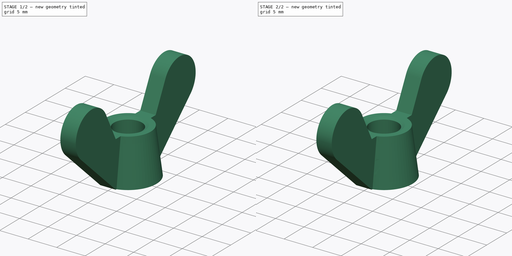
[diagram: build sequence overview — one tinted view per stage of 2, left to right]
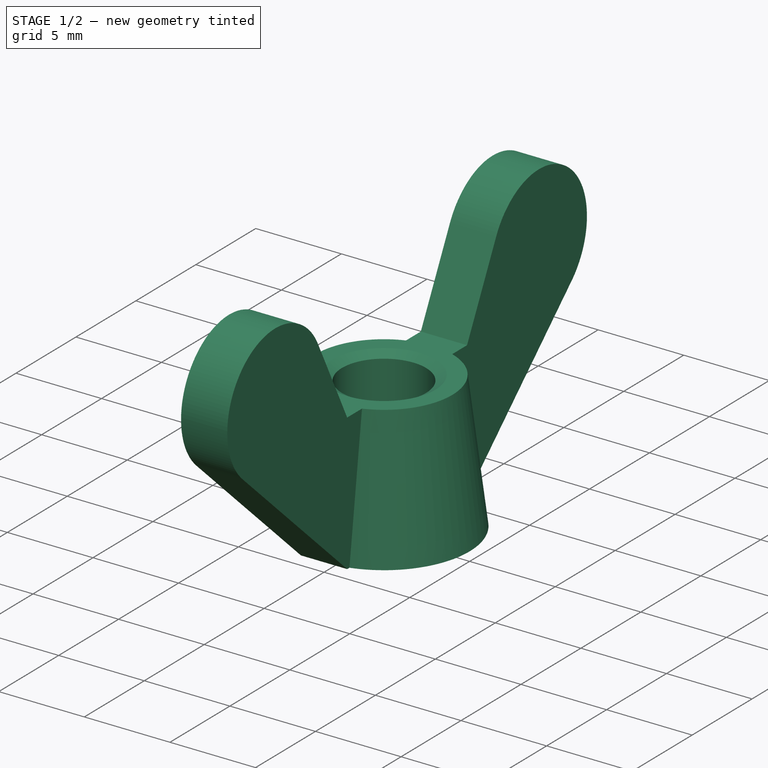
[diagram: stage 1 of 2 — iso view after this stage's code; geometry added in this stage tinted green]
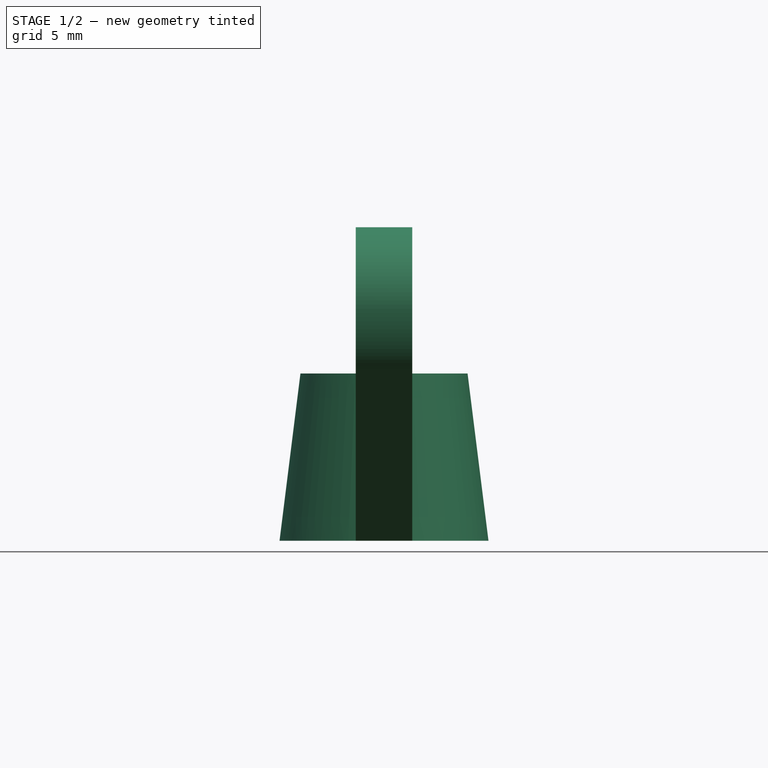
[diagram: stage 1 of 2 — front view after this stage's code; geometry added in this stage tinted green]
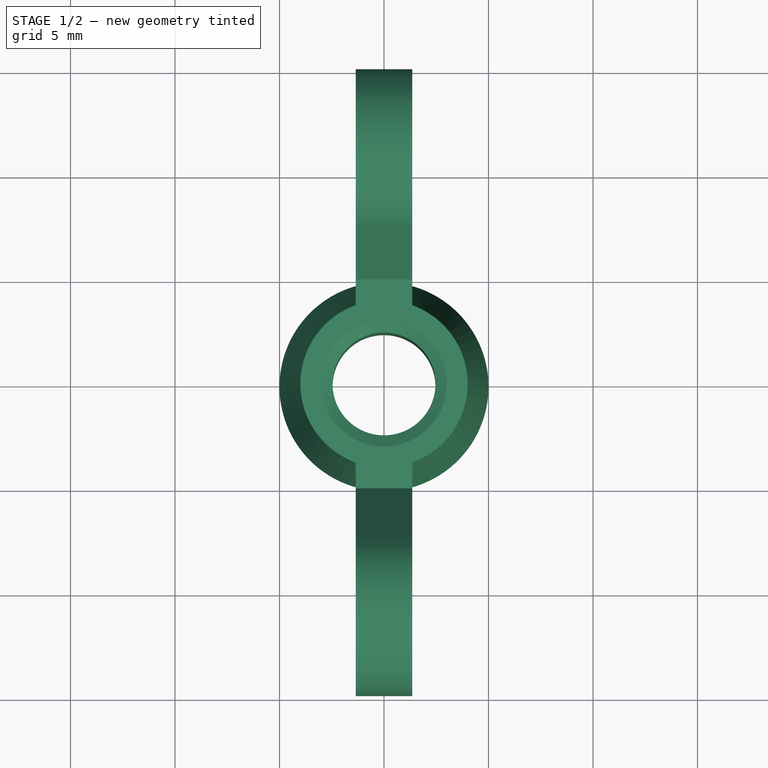
[diagram: stage 1 of 2 — top view after this stage's code; geometry added in this stage tinted green]
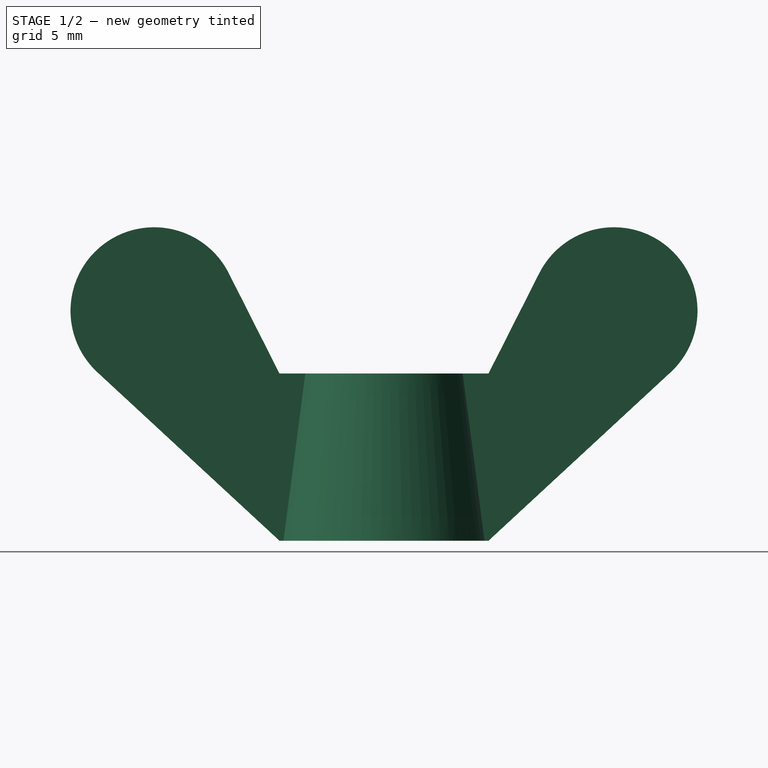
[diagram: stage 1 of 2 — right view after this stage's code; geometry added in this stage tinted green]
FCSTD DOCUMENT  (FreeCAD 0.15R4470 (Git))
Label: Fluegelmutter_DIN_315-M6
License: CC-BY 3.0
LicenseURL: http://creativecommons.org/licenses/by/3.0/
objects: Sketcher::SketchObject×2, PartDesign::Revolution×1, PartDesign::Pad×1, Part::Fuse×1
note: 7 computed .brp shape members not serialized (recipe doc carries the construction recipe); baked Part::Feature solids carry a one-line shape summary decoded from their .brp

FEATURE [Sketcher::SketchObject] Sketch
  Placement = pos=(0,0,0) rot=(0.57735,0.57735,0.57735;2.0944rad)
  sketch-geometry (7):
    g0: LineSegment StartX=3 StartY=0 StartZ=0 EndX=2.46 EndY=0.311769 EndZ=0
    g1: LineSegment StartX=2.46 StartY=0.311769 StartZ=0 EndX=2.46 EndY=7.68823 EndZ=0
    g2: LineSegment StartX=2.46 StartY=7.68823 StartZ=0 EndX=3 EndY=8 EndZ=0
    g3: LineSegment StartX=3 StartY=8 StartZ=0 EndX=4 EndY=8 EndZ=0
    g4: LineSegment StartX=4 StartY=8 StartZ=0 EndX=5 EndY=0 EndZ=0
    g5: LineSegment StartX=5 StartY=0 StartZ=0 EndX=3 EndY=0 EndZ=0
    g6: LineSegment [constr] StartX=3 StartY=8 StartZ=0 EndX=3 EndY=0 EndZ=0
  constraints (20):
    c: PointOnObject(g0,g-1)
    c: Coincident(g0,g1)
    c: Vertical(g1)
    c: Coincident(g1,g2)
    c: Coincident(g2,g3)
    c: Horizontal(g3)
    c: Coincident(g3,g4)
    c: PointOnObject(g4,g-1)
    c: Coincident(g4,g5)
    c: Coincident(g5,g0)
    c: Coincident(g6,g2)
    c: Coincident(g6,g0)
    c: Vertical(g6)
    c: Equal(g0,g2)
    c: Angle(g0,g2) = 1.0472
    c: DistanceX(g-1,g0) = 2.46
    c: DistanceX(g-1,g0) = 3
    c: DistanceX(g-1,g3) = 4
    c: DistanceX(g-1,g4) = 5
    c: DistanceY(g4,g3) = 8
FEATURE [PartDesign::Revolution] Revolution
  Angle = 360
  Axis = (0,0,1)
  Base = (0,0,0)
  Placement = pos=(0,0,0) rot=(0.57735,0.57735,0.57735;2.0944rad)
  ReferenceAxis = -> Sketch [V_Axis]
  Reversed = true
  Sketch = -> Sketch
FEATURE [Sketcher::SketchObject] Sketch001
  Placement = pos=(0,0,0) rot=(0.57735,0.57735,0.57735;2.0944rad)
  sketch-geometry (13):
    g0: LineSegment StartX=3 StartY=0 StartZ=0 EndX=3 EndY=8 EndZ=0
    g1: LineSegment StartX=3 StartY=8 StartZ=0 EndX=5 EndY=8 EndZ=0
    g2: LineSegment StartX=5 StartY=8 StartZ=0 EndX=7.43063 EndY=12.8054 EndZ=0
    g3: LineSegment StartX=3 StartY=0 StartZ=0 EndX=5 EndY=0 EndZ=0
    g4: LineSegment StartX=5 StartY=0 StartZ=0 EndX=13.7164 EndY=8.0638 EndZ=0
    g5: ArcOfCircle CenterX=11 CenterY=11 CenterZ=0 NormalX=0 NormalY=0 NormalZ=1 Radius=4 StartAngle=5.45892 EndAngle=8.95649
    g6: LineSegment [constr] StartX=5 StartY=0 StartZ=0 EndX=5 EndY=8 EndZ=0
    g7: LineSegment StartX=-13.7164 StartY=8.0638 StartZ=0 EndX=-5 EndY=0 EndZ=0
    g8: LineSegment StartX=-5 StartY=0 StartZ=0 EndX=-3 EndY=0 EndZ=0
    g9: LineSegment StartX=-3 StartY=0 StartZ=0 EndX=-3 EndY=8 EndZ=0
    g10: LineSegment StartX=-3 StartY=8 StartZ=0 EndX=-5 EndY=8 EndZ=0
    g11: LineSegment StartX=-5 StartY=8 StartZ=0 EndX=-7.43063 EndY=12.8054 EndZ=0
    g12: ArcOfCircle CenterX=-11 CenterY=11 CenterZ=0 NormalX=0 NormalY=0 NormalZ=1 Radius=4 StartAngle=0.468289 EndAngle=3.96586
  constraints (41):
    c: PointOnObject(g0,g-1)
    c: Vertical(g0)
    c: Coincident(g0,g1)
    c: Horizontal(g1)
    c: Coincident(g1,g2)
    c: Coincident(g0,g3)
    c: PointOnObject(g3,g-1)
    c: Coincident(g3,g4)
    c: Coincident(g5,g2)
    c: Coincident(g5,g4)
    c: DistanceX(g-1,g0) = 3
    c: DistanceX(g-1,g3) = 5
    c: Coincident(g6,g3)
    c: Coincident(g6,g1)
    c: Vertical(g6)
    c: DistanceY(g0) = 8
    c: Tangent(g2,g5)
    c: Tangent(g4,g5)
    c: Equal(g5,g0)
    c: DistanceY(g5,g3) = -11
    c: DistanceX(g-1,g5) = 11
    c: Radius(g5) = 4
    c: PointOnObject(g7,g-1)
    c: Coincident(g7,g8)
    c: Horizontal(g8)
    c: Coincident(g8,g9)
    c: Vertical(g9)
    c: Coincident(g9,g10)
    c: Horizontal(g10)
    c: Coincident(g10,g11)
    c: Coincident(g12,g11)
    c: Coincident(g12,g7)
    c: Tangent(g7,g12)
    c: Tangent(g12,g11)
    c: Equal(g9,g0)
    c: Equal(g10,g1)
    c: Equal(g8,g3)
    c: Equal(g7,g4)
    c: Equal(g12,g5)
    c: Equal(g11,g2)
    c: Symmetric(g12,g5,g-2)
FEATURE [PartDesign::Pad] Pad
  Length = 2.7
  Length2 = 100
  Midplane = true
  Placement = pos=(0,0,0) rot=(0.57735,0.57735,0.57735;2.0944rad)
  Sketch = -> Sketch001
  Type = 0
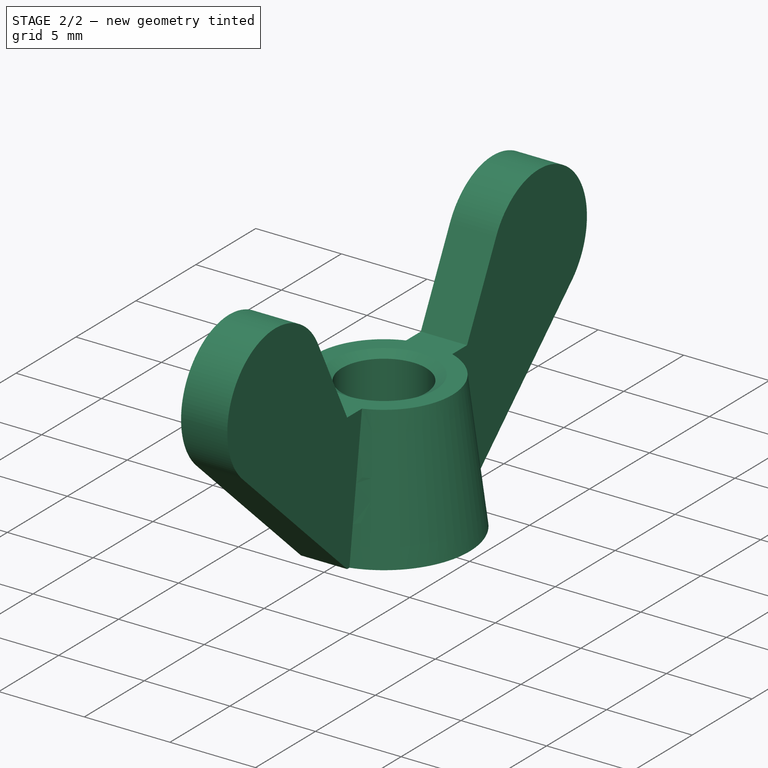
[diagram: stage 2 of 2 — iso view after this stage's code; geometry added in this stage tinted green]
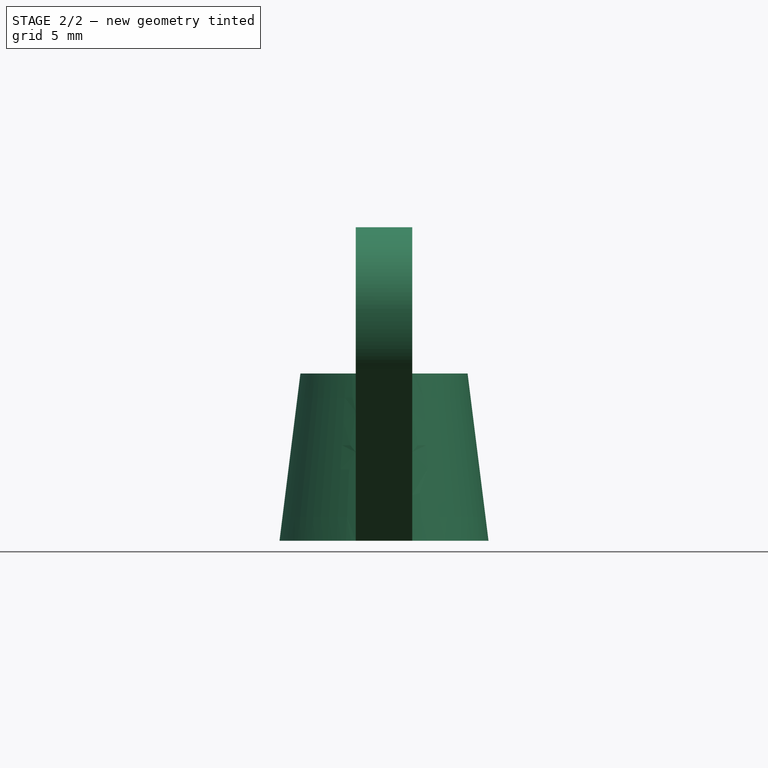
[diagram: stage 2 of 2 — front view after this stage's code; geometry added in this stage tinted green]
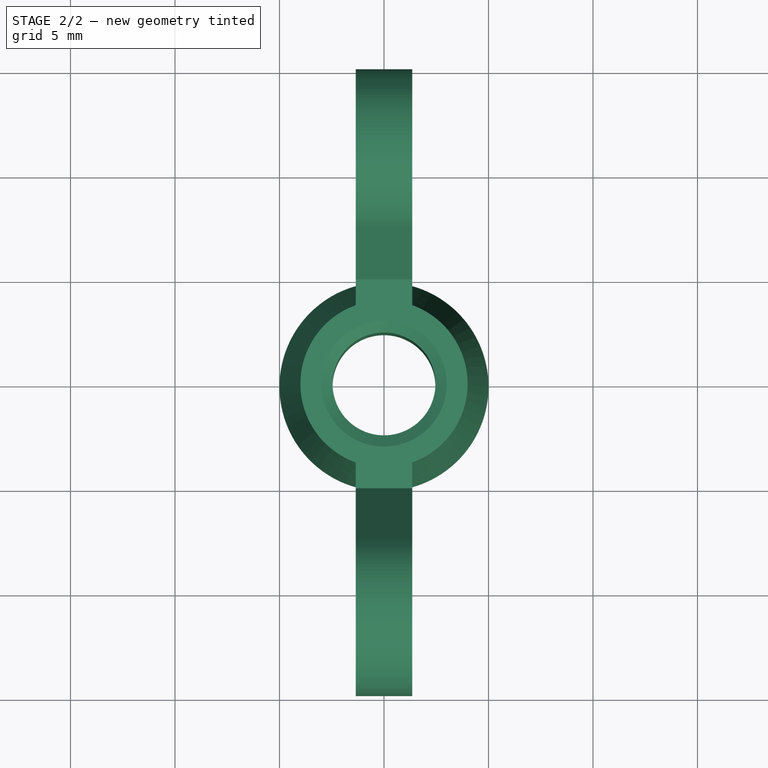
[diagram: stage 2 of 2 — top view after this stage's code; geometry added in this stage tinted green]
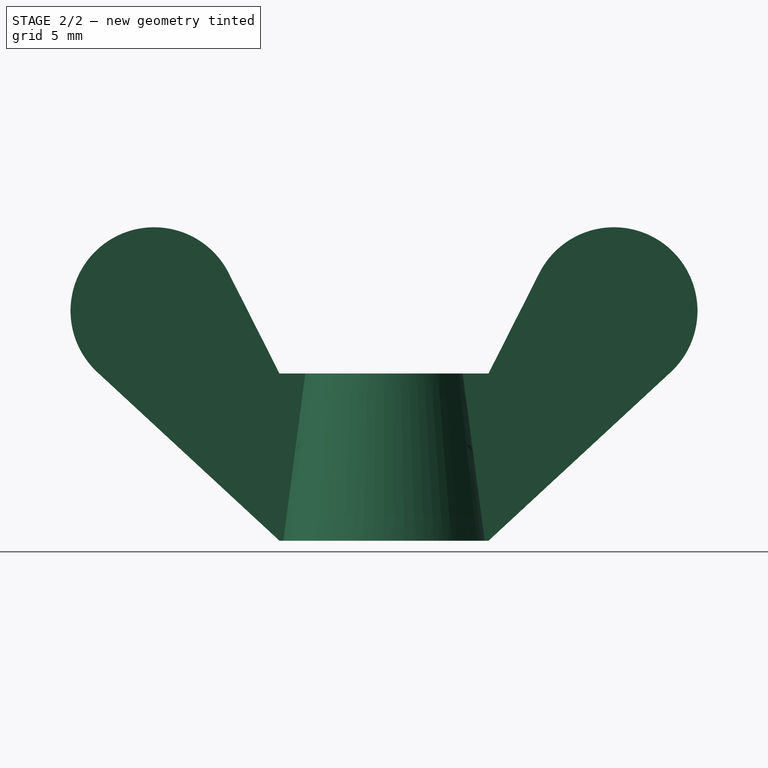
[diagram: stage 2 of 2 — right view after this stage's code; geometry added in this stage tinted green]
FEATURE [Part::Fuse] Fusion  label="Flügelmutter DIN 315 - M6 #"
  Base = -> Revolution
  Tool = -> Pad
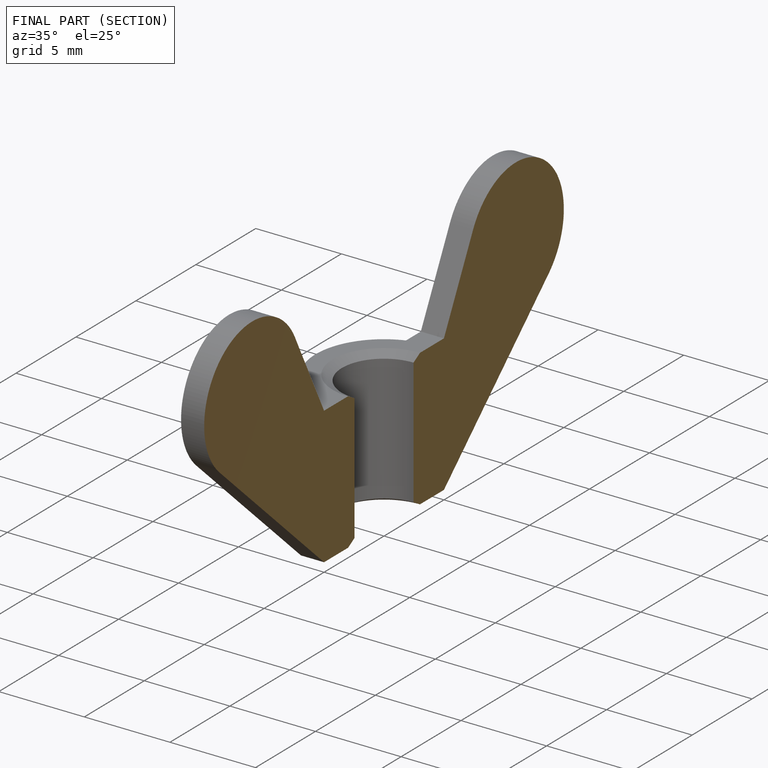
[diagram: finished part — half-section view (interior)]
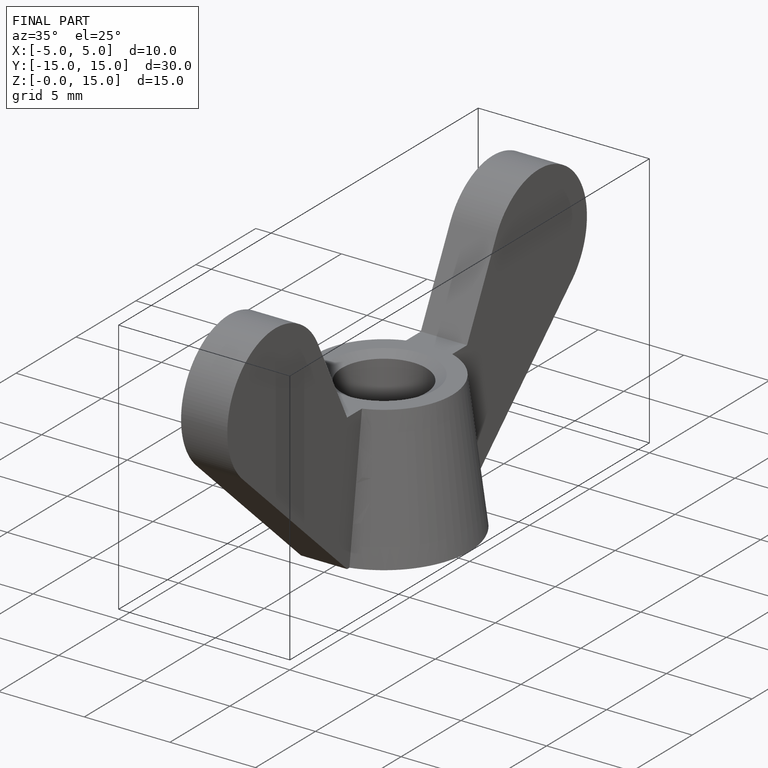
[diagram: finished part — iso view with bounding-box wireframe]
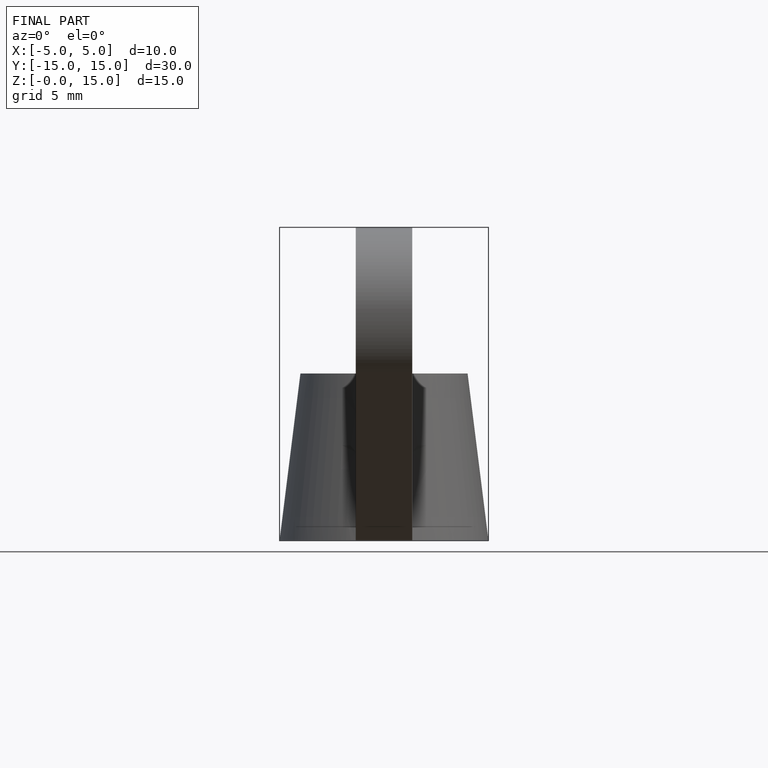
[diagram: finished part — front view with bounding-box wireframe]
